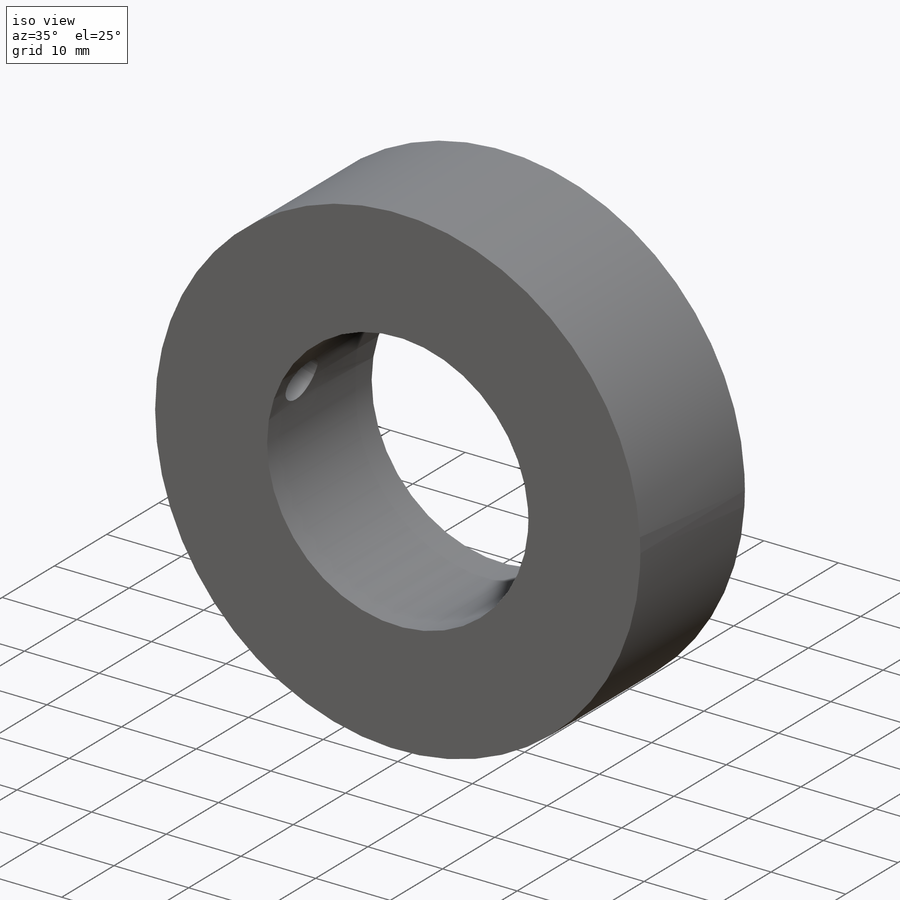
[diagram: iso view]
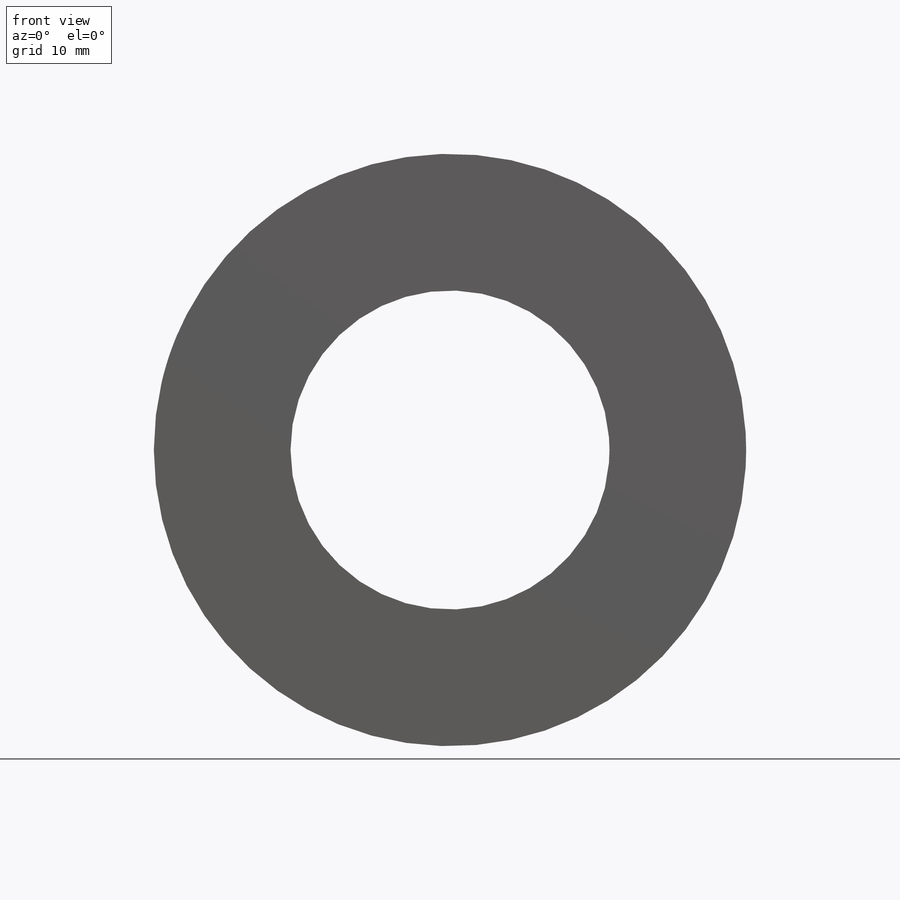
[diagram: front view]
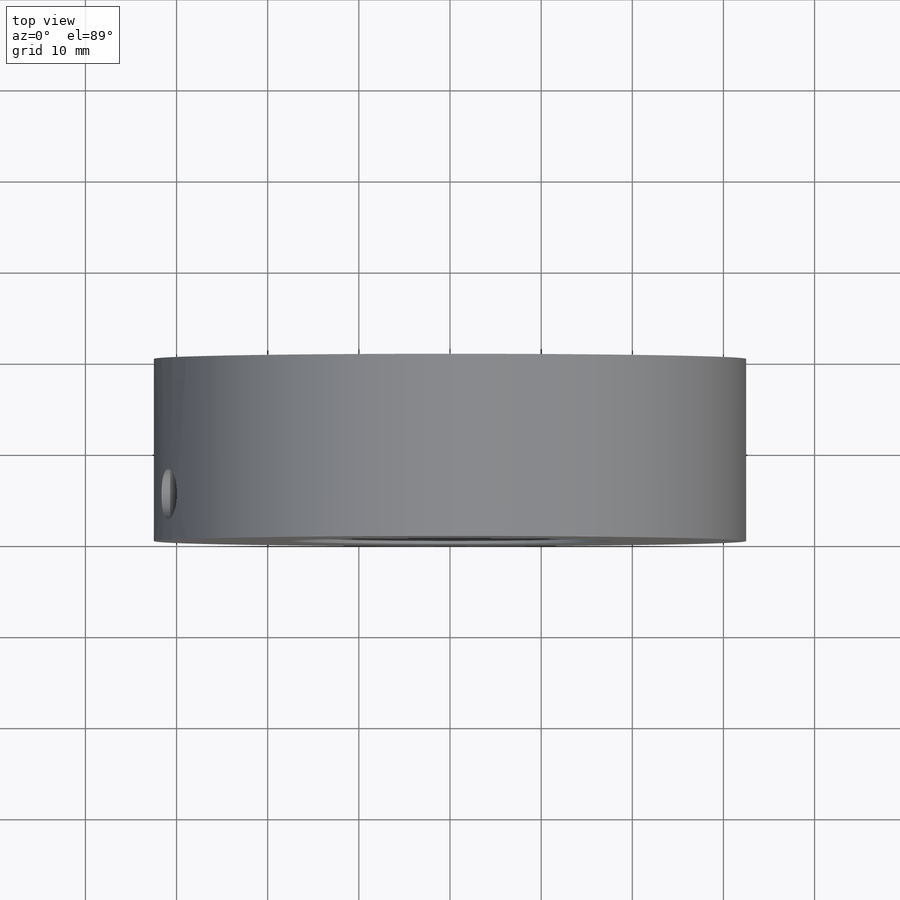
[diagram: top view]
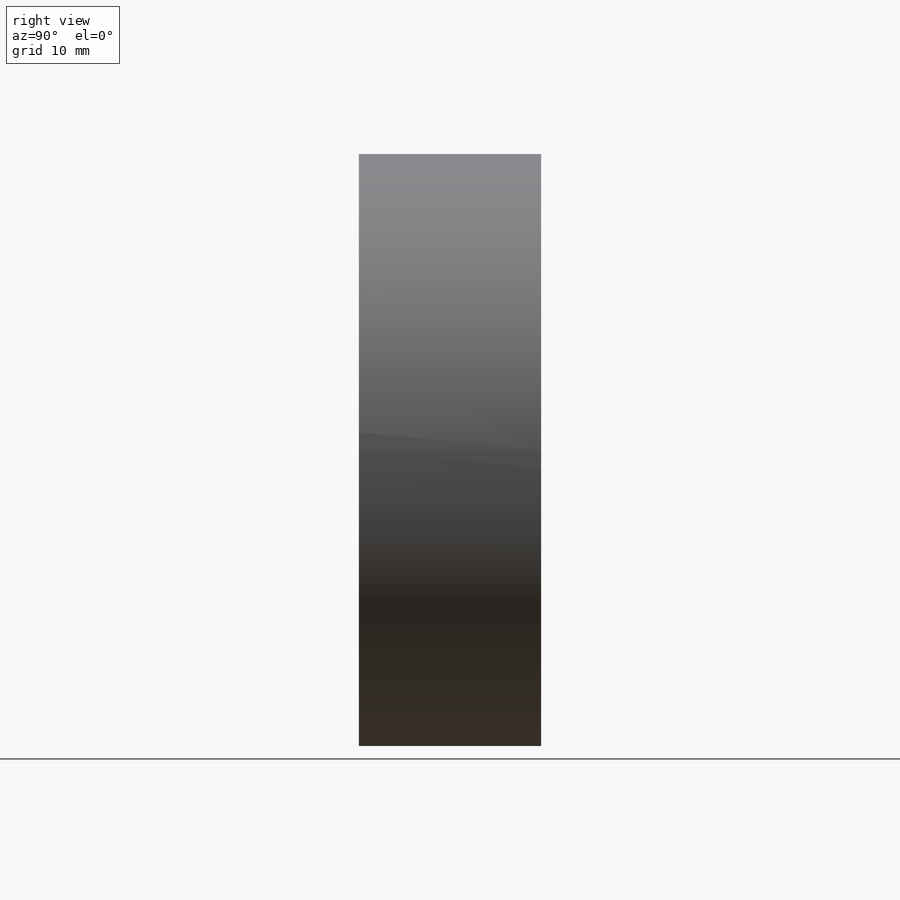
[diagram: right view]
SOLIDWORKS PART (.sldprt)
format: sldprt  version: not decoded by parser v0  size: 190,976 bytes
history: native  units: mm
features: plane x5, sketch x4, material x1, extrude x1, hole x1 (+13 scaffold rows collapsed)
feature tree (25):
  scaffold x13  (default folders/planes/origin — collapsed)
  material  "Material <nicht festgelegt>"
  plane  "Ebene vorne"
  plane  "Ebene oben"
  plane  "Ebene rechts"
  sketch  "Skizze1"  dims[D1=35.0mm D2=65.0mm]
  extrude  "Aufsatz-Linear austragen1"  Depth=20mm
  sketch  "Skizze2"  dims[c1.D1=~43.458894mm c2.D1=15.0deg c2.D2=10.0mm]
  plane  "Ebene1"
  plane  "Ebene2"  Offset=10mm
  hole  "Ø5.5 (5.5) Durchmesser Bohrung2"  Diameter=5.5mm Depth=25.036299mm
  sketch  "Skizze4"  dims[D1=5.0mm]
  sketch  "Skizze3"  dims[hole-wizard template sketch: 59 standard entries collapsed; hole parameters kept: c18.Bohrerdurchmesser=5.5mm c18.Bohrungstiefe=~25.036299mm]
decode coverage: 6 of 6 modeling features carry decoded parameters
note: ~ marks probable driven/reference dimensions
note: suppression state not decoded; provenance and decode notes live in map.json
